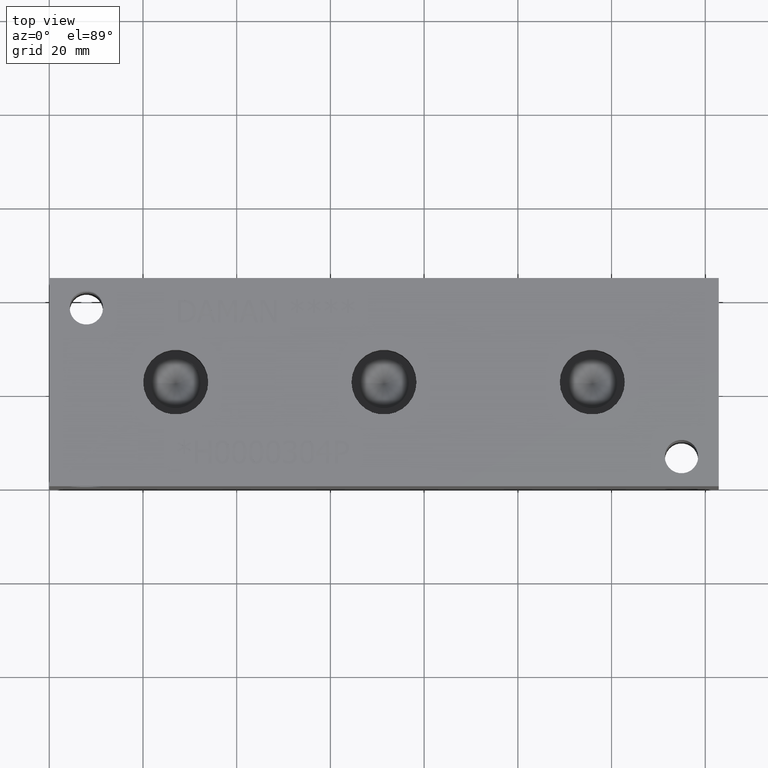
[diagram: clean part render]
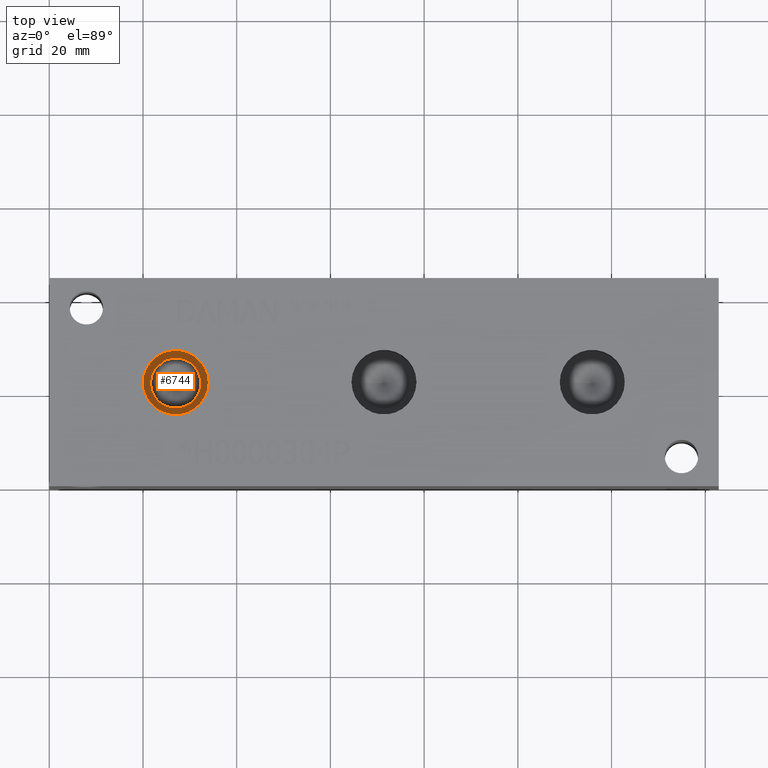
[diagram: same view with one face highlighted and labeled with its STEP entity id]
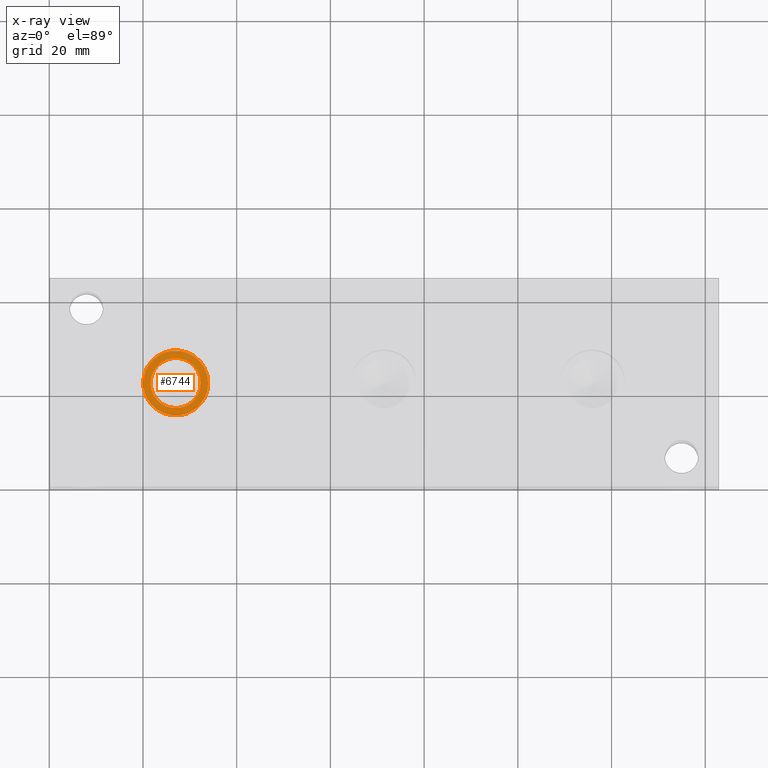
[diagram: x-ray of the same camera — body ghosted, the highlighted face saturated]
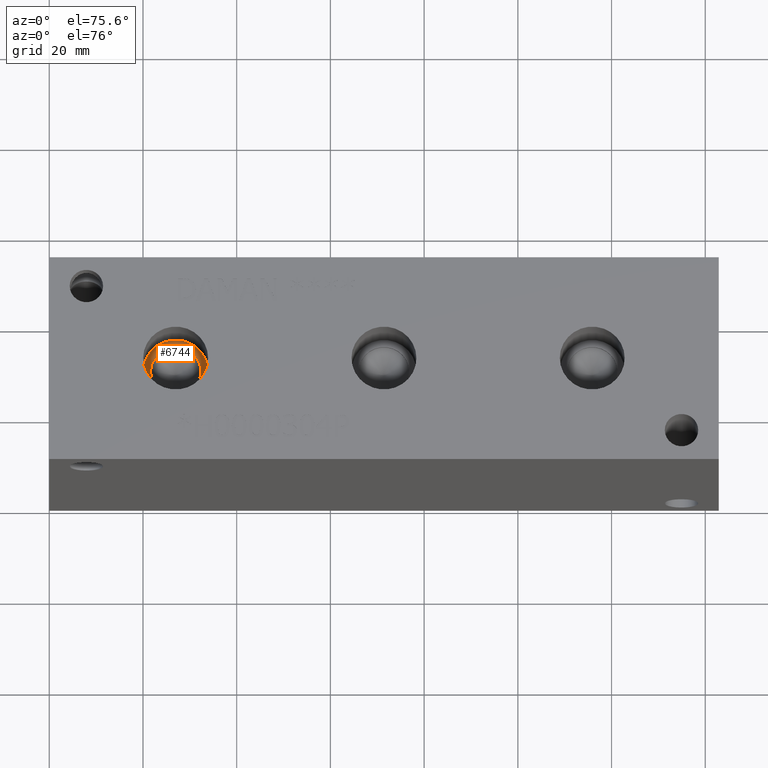
[diagram: same view with one face highlighted and labeled with its STEP entity id]
A machine part, top view. The second image highlights one B-rep face of the part: STEP entity #6744.
The next image is the same camera in x-ray: the body ghosted, the highlighted face saturated — about 0% of this face is hidden behind the body in this view.
A second angle (auxiliary view) of the same face is appended — the face is thin or edge-on in the first view.
In plain terms, the highlighted planar face has unit normal (0, 0, 1).
Its self-contained STEP definition (entity closure, byte-faithful):
#70=CIRCLE('',#7038,6.9342);
#71=CIRCLE('',#7039,6.9342);
#72=CIRCLE('',#7040,5.3594);
#127=FACE_BOUND('',#1059,.T.);
#352=PLANE('',#7037);
#682=FACE_OUTER_BOUND('',#1058,.T.);
#1058=EDGE_LOOP('',(#5928,#5929));
#1059=EDGE_LOOP('',(#5930));
#3230=VERTEX_POINT('',#11394);
#3231=VERTEX_POINT('',#11395);
#3232=VERTEX_POINT('',#11398);
#4142=EDGE_CURVE('',#3230,#3231,#70,.T.);
#4143=EDGE_CURVE('',#3231,#3230,#71,.T.);
#4144=EDGE_CURVE('',#3232,#3232,#72,.T.);
#5928=ORIENTED_EDGE('',*,*,#4142,.T.);
#5929=ORIENTED_EDGE('',*,*,#4143,.T.);
#5930=ORIENTED_EDGE('',*,*,#4144,.F.);
#6744=ADVANCED_FACE('',(#682,#127),#352,.T.);
#7037=AXIS2_PLACEMENT_3D('',#11393,#8258,#8259);
#7038=AXIS2_PLACEMENT_3D('',#11396,#8260,#8261);
#7039=AXIS2_PLACEMENT_3D('',#11397,#8262,#8263);
#7040=AXIS2_PLACEMENT_3D('',#11399,#8264,#8265);
#8258=DIRECTION('center_axis',(0.,0.,1.));
#8259=DIRECTION('ref_axis',(1.,0.,0.));
#8260=DIRECTION('center_axis',(0.,0.,1.));
#8261=DIRECTION('ref_axis',(1.,0.,0.));
#8262=DIRECTION('center_axis',(0.,0.,1.));
#8263=DIRECTION('ref_axis',(1.,0.,0.));
#8264=DIRECTION('center_axis',(0.,0.,1.));
#8265=DIRECTION('ref_axis',(1.,0.,0.));
#11393=CARTESIAN_POINT('Origin',(26.9748,22.225,33.0454));
#11394=CARTESIAN_POINT('',(33.909,22.225,33.0454));
#11395=CARTESIAN_POINT('',(20.0406,22.225,33.0454));
#11396=CARTESIAN_POINT('Origin',(26.9748,22.225,33.0454));
#11397=CARTESIAN_POINT('Origin',(26.9748,22.225,33.0454));
#11398=CARTESIAN_POINT('',(21.6154,22.225,33.0454));
#11399=CARTESIAN_POINT('Origin',(26.9748,22.225,33.0454));